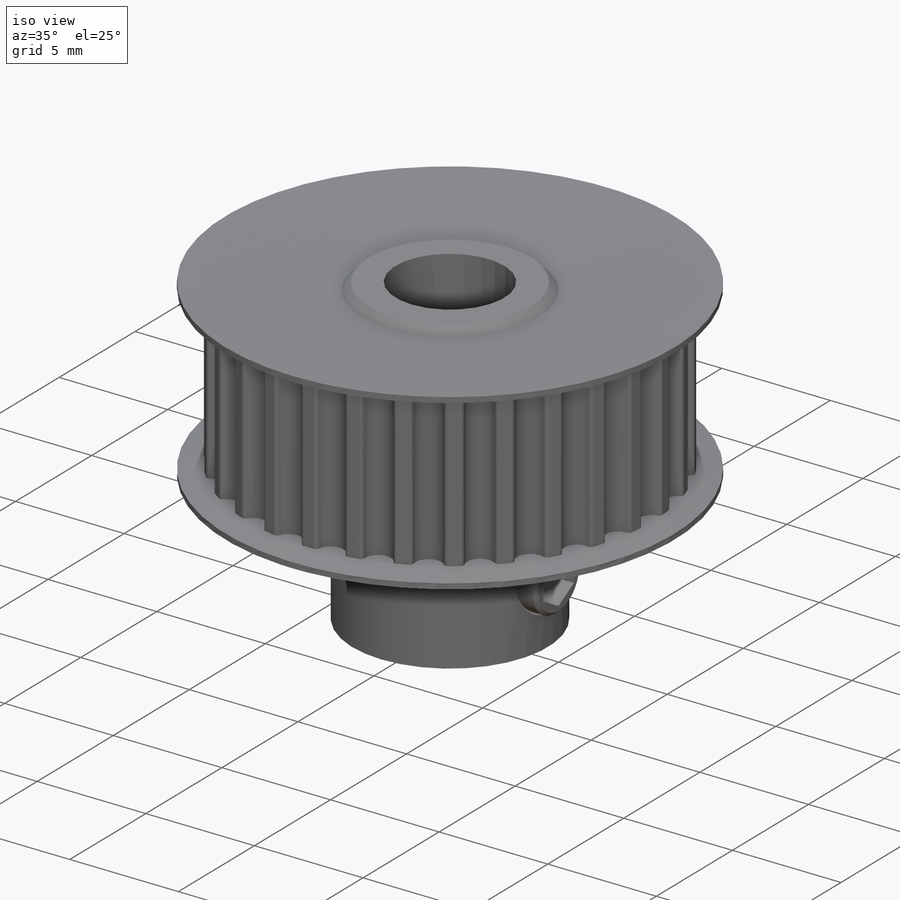
[diagram: iso view]
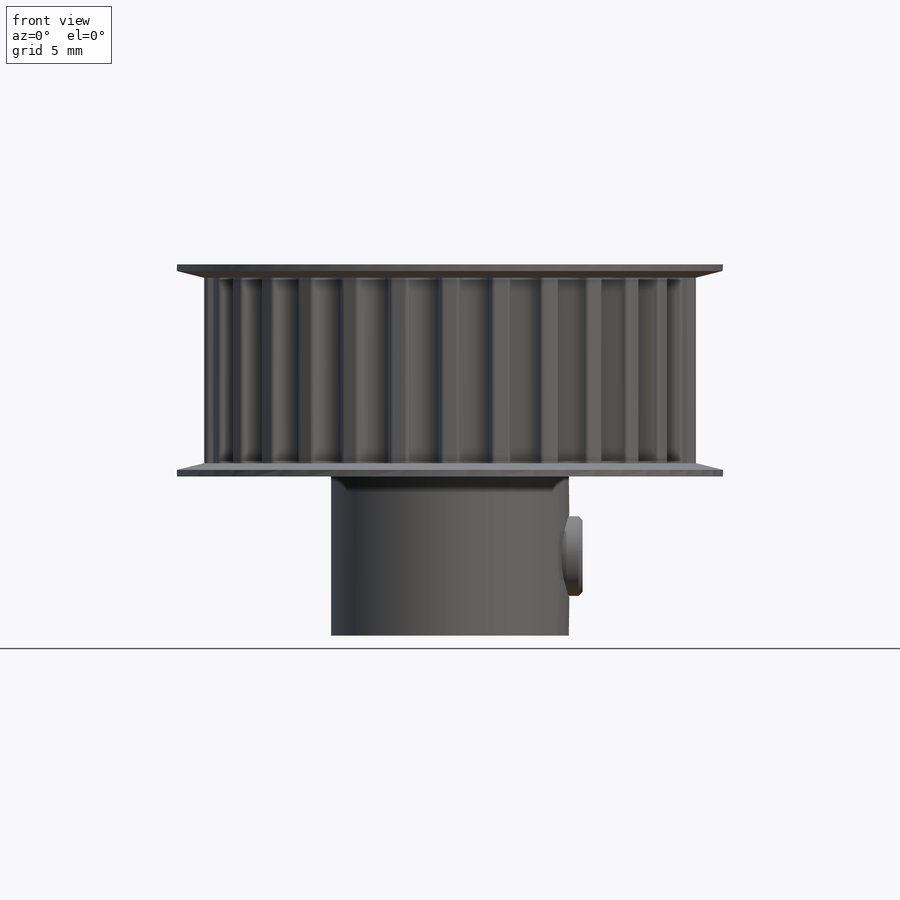
[diagram: front view]
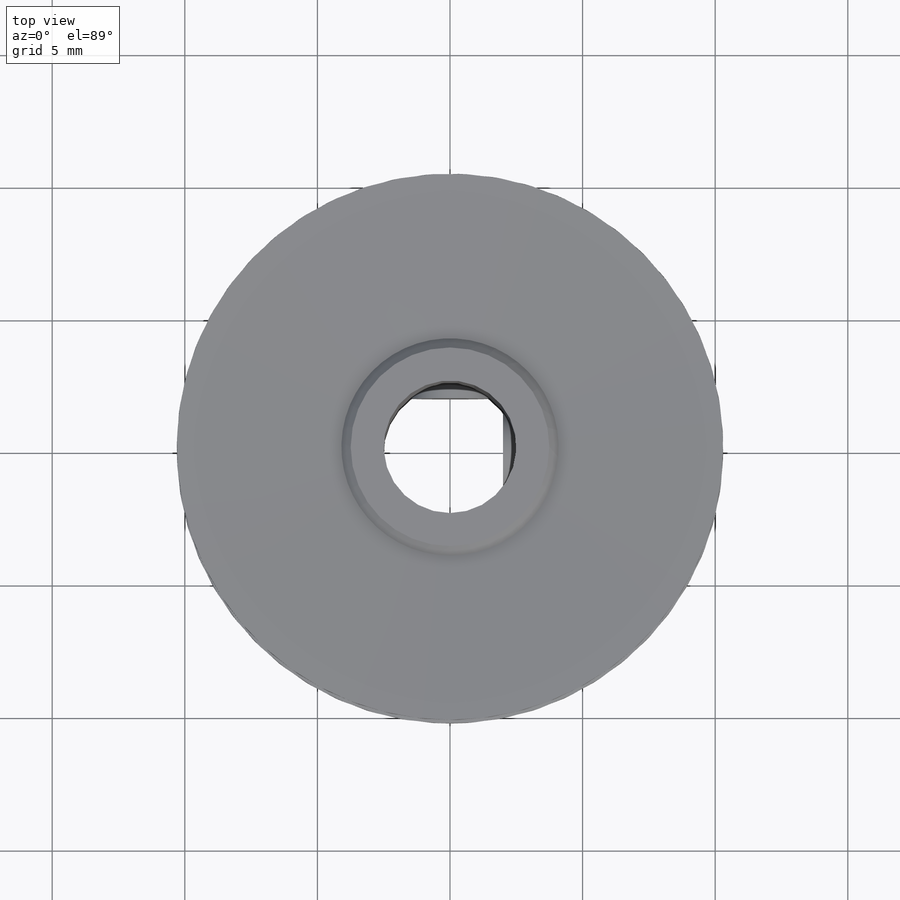
[diagram: top view]
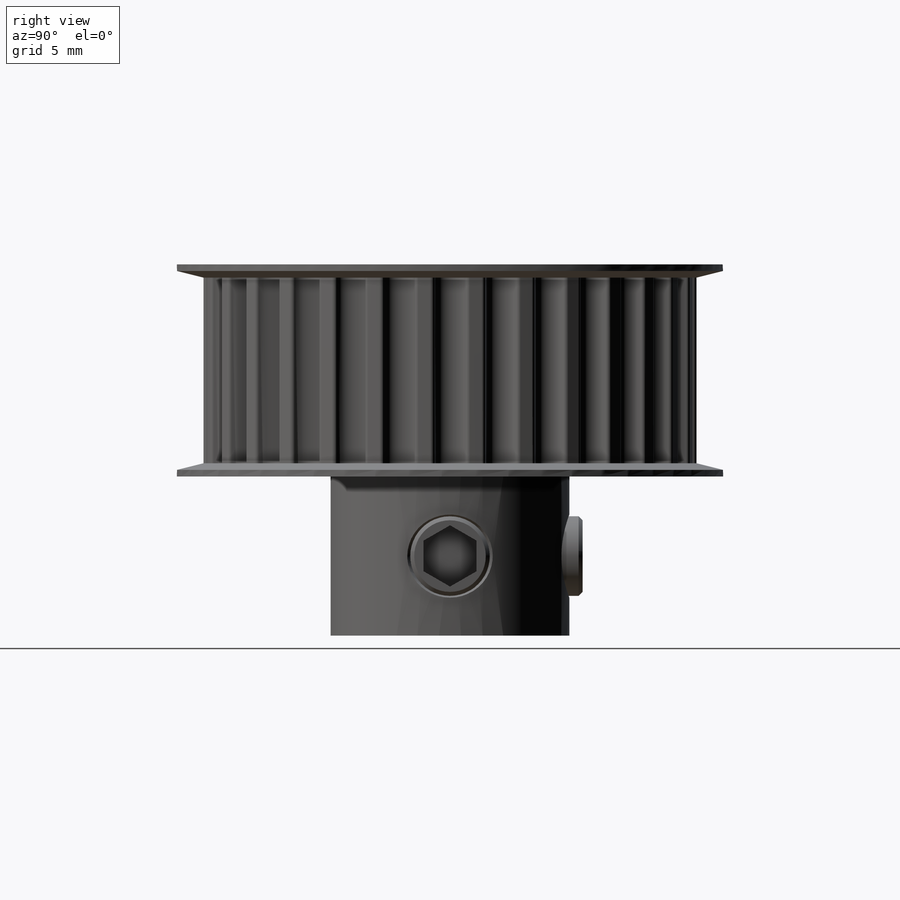
[diagram: right view]
SOLIDWORKS PART (.sldprt)
format: sldprt  version: not decoded by parser v0  size: 540,672 bytes
history: native  units: mm
features: sketch x10, cut_extrude x4, extrude x3, pattern_circular x3, cut_revolve x2, plane x2, chamfer x2, material x1, fillet x1 (+12 scaffold rows collapsed)
feature tree (40):
  scaffold x12  (default folders/planes/origin — collapsed)
  material  "Material <not specified>"
  sketch  "Sketch2"  dims[D1=9.0mm]
  extrude  "Boss-Extrude1"  Depth=6mm
  sketch  "Sketch3"  dims[D1=20.6mm]
  extrude  "Boss-Extrude2"  Depth=8mm
  sketch  "Sketch4"  dims[D1=0.25mm D2=3.5mm D3=9.3mm]
  cut_revolve  "Cut-Revolve1"  Angle=360deg
  plane  "Plane1"  Offset=6.5mm
  sketch  "Sketch5"  dims[D1=1.2mm]
  cut_extrude  "Cut-Extrude1"  Depth=7mm
  fillet  "Fillet1"  Radius=0.15mm
  pattern_circular  "CirPattern1"  Count=30 Angle=360deg
  sketch  "Sketch6"  dims[D1=7.5mm]
  sketch  "Sketch7"  dims[c1.D1=~6.554769mm c2.D1=45.0deg c2.D2=0.35mm c2.D3=0.35mm]
  cut_revolve  "Cut-Revolve2"  Angle=360deg
  sketch  "Sketch8"  dims[D1=5.0mm]
  cut_extrude  "Cut-Extrude2"  [1 undecoded]
  sketch  "Sketch9"  dims[D1=3.0mm D2=3.0mm]
  cut_extrude  "Cut-Extrude3"  Depth=7mm
  chamfer  "Chamfer1"  Distance=0.15mm Angle=45deg
  pattern_circular  "CirPattern3"  Count=2 Angle=90deg
  plane  "Plane2"  Offset=5mm
  sketch  "Sketch10"
  extrude  "Boss-Extrude3"  Depth=3mm
  sketch  "Sketch11"  dims[D1=2.0mm]
  cut_extrude  "Cut-Extrude4"  Depth=2.5mm
  chamfer  "Chamfer2"  Distance=0.15mm Angle=45deg
  pattern_circular  "CirPattern2"  Count=2 Angle=90deg
decode coverage: 23 of 25 modeling features carry decoded parameters
note: ~ marks probable driven/reference dimensions
note: 1 parameter value undecoded
note: suppression state not decoded; provenance and decode notes live in map.json
